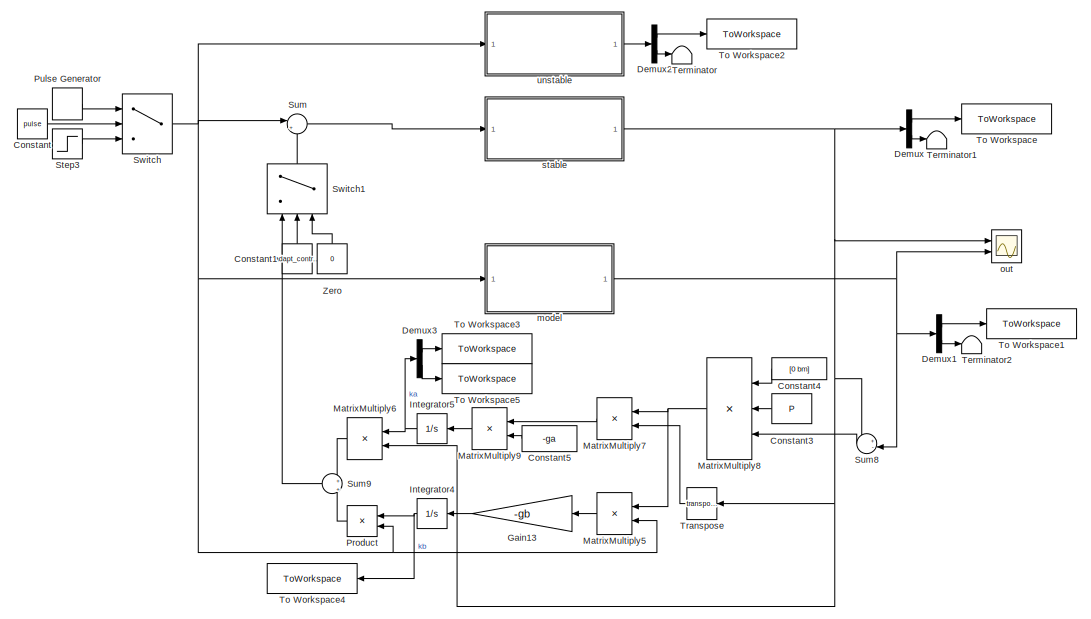
[diagram: root canvas - part 1/2, right side, full height]
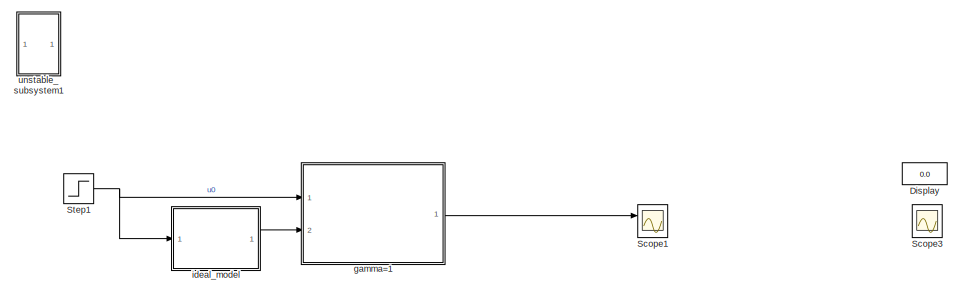
[diagram: root canvas - part 2/2, middle left region]
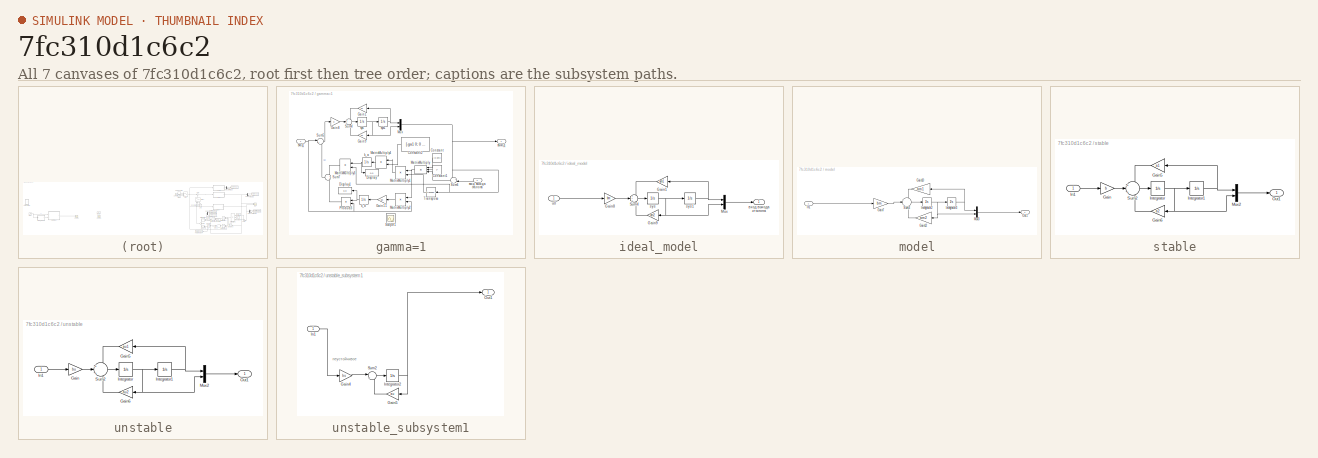
[diagram: thumbnail index - all 7 canvases of the model, root first then tree order]
MODEL slx_7fc310d1c6c2
KIND model
CONFIG AbsTol = auto
CONFIG EnableMultiTasking = off
CONFIG FixedStep = auto
CONFIG MaxStep = 1e-2
CONFIG MinStep = auto
CONFIG RelTol = 1e-3
CONFIG SampleTimeConstraint = Unconstrained
CONFIG SolverName = VariableStepAuto
CONFIG StartTime = 0.0
CONFIG StopTime = t
BLOCK [Constant] Constant
  Value = pulse
BLOCK [Constant] Constant1
  NameLocation = right
  Value = adapt_control
BLOCK [Constant] Constant3
  NameLocation = top
  Value = P
  VectorParams1D = off
BLOCK [Constant] Constant4
  NameLocation = top
  Value = [0 bm]
  VectorParams1D = off
BLOCK [Constant] Constant5
  NameLocation = top
  Value = -ga
  VectorParams1D = off
BLOCK [Demux] Demux
  Outputs = 2
  Ports = [1, 2]
BLOCK [Demux] Demux1
  Outputs = 2
  Ports = [1, 2]
BLOCK [Demux] Demux2
  Outputs = 2
  Ports = [1, 2]
BLOCK [Demux] Demux3
  Outputs = 2
  Ports = [1, 2]
BLOCK [Display] Display
  Commented = on
  Decimation = 2
  Ports = [1]
BLOCK [Gain] Gain13
  Gain = -gb
  NameLocation = top
BLOCK [Integrator] Integrator4
  NameLocation = top
  Ports = [1, 1]
BLOCK [Integrator] Integrator5
  NameLocation = top
  Ports = [1, 1]
BLOCK [Product] MatrixMultiply5
  Multiplication = Matrix(*)
  NameLocation = top
  Ports = [2, 1]
BLOCK [Product] MatrixMultiply6
  Multiplication = Matrix(*)
  NameLocation = top
  Ports = [2, 1]
BLOCK [Product] MatrixMultiply7
  Multiplication = Matrix(*)
  NameLocation = top
  Ports = [2, 1]
BLOCK [Product] MatrixMultiply8
  Inputs = 3
  Multiplication = Matrix(*)
  NameLocation = top
  Ports = [3, 1]
BLOCK [Product] MatrixMultiply9
  Multiplication = Matrix(*)
  NameLocation = top
  Ports = [2, 1]
BLOCK [Product] Product
  NameLocation = top
  Ports = [2, 1]
BLOCK [DiscretePulseGenerator] Pulse Generator
  Period = 20
  Ports = [0, 1]
  PulseType = Time based
  PulseWidth = 50
BLOCK [Scope] Scope1
  Commented = on
  Floating = off
  NumInputPorts = 2
  Ports = [2]
  ScopeSpecificationString = Simulink.scopes.TimeScopeBlockCfg('CurrentConfiguration', extmgr.ConfigurationSet(extmgr.Configuration('Core','General UI',true,'FigureColor',[1 1 1]),extmgr.Configuration('Core','Source UI',true),extmgr.Configuration('Sources','WiredSimulink',true,'DataLoggingVariableName','ScopeData1'),extmgr.Configuration('Visuals','Time Domain',true,'SerializedDisplays',{struct('MinYLimReal','-0.24245','MaxYLi...<+1633ch>
BLOCK [Scope] Scope3
  Commented = on
  Floating = off
  NumInputPorts = 2
  Ports = [2]
  ScopeSpecificationString = Simulink.scopes.TimeScopeBlockCfg('CurrentConfiguration', extmgr.ConfigurationSet(extmgr.Configuration('Core','General UI',true,'FigureColor',[1 1 1]),extmgr.Configuration('Core','Source UI',true),extmgr.Configuration('Sources','WiredSimulink',true,'DataLoggingVariableName','ScopeData1'),extmgr.Configuration('Visuals','Time Domain',true,'SerializedDisplays',{struct('MinYLimReal','-2.42455','MaxYLi...<+1621ch>
BLOCK [Step] Step1
  Commented = on
  SampleTime = 0
  Time = 0
BLOCK [Step] Step3
  SampleTime = 0
  Time = 0
BLOCK [Sum] Sum
  Inputs = |++
  Ports = [2, 1]
BLOCK [Sum] Sum8
  Inputs = +-|
  NameLocation = top
  Ports = [2, 1]
BLOCK [Sum] Sum9
  Inputs = +|+
  NameLocation = top
  Ports = [2, 1]
BLOCK [Switch] Switch
  Criteria = u2 > Threshold
  InputSameDT = off
  SaturateOnIntegerOverflow = off
BLOCK [Switch] Switch1
  Criteria = u2 > Threshold
  InputSameDT = off
  NameLocation = right
  SaturateOnIntegerOverflow = off
BLOCK [Terminator] Terminator
BLOCK [Terminator] Terminator1
BLOCK [Terminator] Terminator2
BLOCK [ToWorkspace] To Workspace
  FixptAsFi = on
  MaxDataPoints = inf
  Ports = [1]
  SampleTime = -1
  SaveFormat = Timeseries
  VariableName = stable
BLOCK [ToWorkspace] To Workspace1
  FixptAsFi = on
  MaxDataPoints = inf
  Ports = [1]
  SampleTime = -1
  SaveFormat = Timeseries
  VariableName = model
BLOCK [ToWorkspace] To Workspace2
  FixptAsFi = on
  MaxDataPoints = inf
  Ports = [1]
  SampleTime = -1
  SaveFormat = Timeseries
  VariableName = unstable
BLOCK [ToWorkspace] To Workspace3
  FixptAsFi = on
  MaxDataPoints = inf
  Ports = [1]
  SampleTime = -1
  SaveFormat = Timeseries
  VariableName = ka1
BLOCK [ToWorkspace] To Workspace4
  FixptAsFi = on
  MaxDataPoints = inf
  NameLocation = top
  Ports = [1]
  SampleTime = -1
  SaveFormat = Timeseries
  VariableName = kb
BLOCK [ToWorkspace] To Workspace5
  FixptAsFi = on
  MaxDataPoints = inf
  Ports = [1]
  SampleTime = -1
  SaveFormat = Timeseries
  VariableName = ka2
BLOCK [Math] Transpose
  NameLocation = top
  Operator = transpose
  Ports = [1, 1]
BLOCK [Constant] Zero
  NameLocation = right
  OutDataTypeStr = Inherit: Inherit via back propagation
  Value = 0
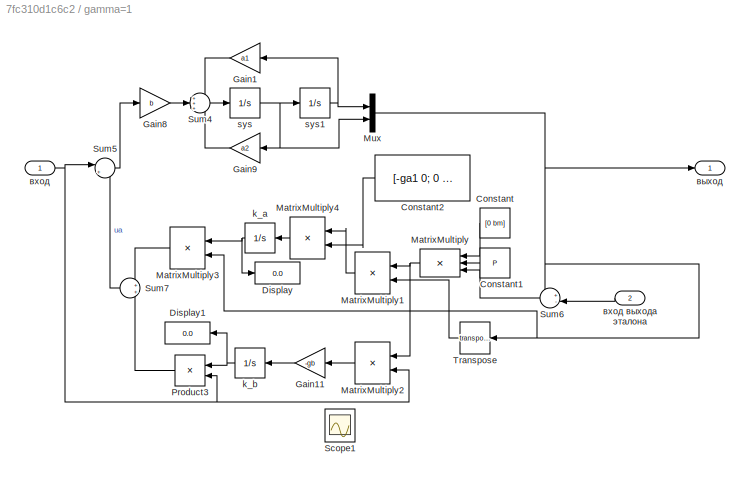
BLOCK [SubSystem] gamma=1
  Commented = on
  Ports = [2, 1]
  RequestExecContextInheritance = off
BLOCK [Constant] gamma=1/Constant
  NameLocation = top
  Value = [0 bm]
BLOCK [Constant] gamma=1/Constant1
  NameLocation = top
  Value = P
BLOCK [Constant] gamma=1/Constant2
  NameLocation = top
  Value = [-ga1 0; 0 -ga2]
BLOCK [Display] gamma=1/Display
  Decimation = 2
  Ports = [1]
BLOCK [Display] gamma=1/Display1
  Decimation = 2
  NameLocation = top
  Ports = [1]
BLOCK [Gain] gamma=1/Gain1
  Gain = a1
  NameLocation = top
BLOCK [Gain] gamma=1/Gain11
  Gain = -gb
  NameLocation = top
BLOCK [Gain] gamma=1/Gain8
  Gain = b
BLOCK [Gain] gamma=1/Gain9
  Gain = a2
  NameLocation = top
BLOCK [Product] gamma=1/MatrixMultiply
  Inputs = 3
  Multiplication = Matrix(*)
  NameLocation = top
  Ports = [3, 1]
BLOCK [Product] gamma=1/MatrixMultiply1
  Multiplication = Matrix(*)
  NameLocation = top
  Ports = [2, 1]
BLOCK [Product] gamma=1/MatrixMultiply2
  Multiplication = Matrix(*)
  NameLocation = top
  Ports = [2, 1]
BLOCK [Product] gamma=1/MatrixMultiply3
  Multiplication = Matrix(*)
  NameLocation = top
  Ports = [2, 1]
BLOCK [Product] gamma=1/MatrixMultiply4
  Multiplication = Matrix(*)
  NameLocation = top
  Ports = [2, 1]
BLOCK [Mux] gamma=1/Mux
  DisplayOption = bar
  Inputs = 2
  Ports = [2, 1]
BLOCK [Product] gamma=1/Product3
  NameLocation = top
  Ports = [2, 1]
BLOCK [Scope] gamma=1/Scope1
  Floating = off
  NumInputPorts = 2
  Ports = [2]
  ScopeSpecificationString = Simulink.scopes.TimeScopeBlockCfg('CurrentConfiguration', extmgr.ConfigurationSet(extmgr.Configuration('Core','General UI',true,'FigureColor',[1 1 1]),extmgr.Configuration('Core','Source UI',true),extmgr.Configuration('Sources','WiredSimulink',true,'DataLoggingVariableName','ScopeData1'),extmgr.Configuration('Visuals','Time Domain',true,'SerializedDisplays',{struct('MinYLimReal','-2.42455','MaxYLi...<+1621ch>
BLOCK [Sum] gamma=1/Sum4
  Inputs = +++
  Ports = [3, 1]
BLOCK [Sum] gamma=1/Sum5
  Inputs = |++
  Ports = [2, 1]
BLOCK [Sum] gamma=1/Sum6
  Inputs = +-|
  NameLocation = top
  Ports = [2, 1]
BLOCK [Sum] gamma=1/Sum7
  NameLocation = top
  Ports = [2, 1]
BLOCK [Math] gamma=1/Transpose
  NameLocation = top
  Operator = transpose
  Ports = [1, 1]
BLOCK [Integrator] gamma=1/k_a
  NameLocation = top
  Ports = [1, 1]
BLOCK [Integrator] gamma=1/k_b
  NameLocation = top
  Ports = [1, 1]
BLOCK [Integrator] gamma=1/sys
  Ports = [1, 1]
BLOCK [Integrator] gamma=1/sys1
  Ports = [1, 1]
BLOCK [Inport] gamma=1/вход
BLOCK [Inport] gamma=1/вход выхода эталона
  Port = 2
BLOCK [Outport] gamma=1/выход
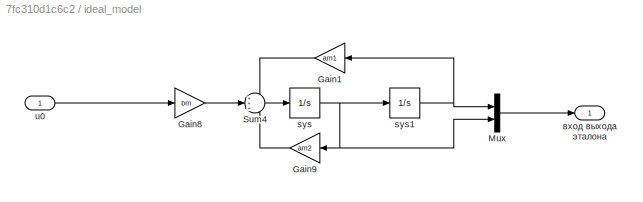
BLOCK [SubSystem] ideal_model
  Commented = on
  Ports = [1, 1]
  RequestExecContextInheritance = off
BLOCK [Gain] ideal_model/Gain1
  Gain = am1
  NameLocation = top
BLOCK [Gain] ideal_model/Gain8
  Gain = bm
BLOCK [Gain] ideal_model/Gain9
  Gain = am2
  NameLocation = top
BLOCK [Mux] ideal_model/Mux
  DisplayOption = bar
  Inputs = 2
  Ports = [2, 1]
BLOCK [Sum] ideal_model/Sum4
  Inputs = +++
  Ports = [3, 1]
BLOCK [Integrator] ideal_model/sys
  Ports = [1, 1]
BLOCK [Integrator] ideal_model/sys1
  Ports = [1, 1]
BLOCK [Inport] ideal_model/u0
BLOCK [Outport] ideal_model/вход выхода эталона
BLOCK [SubSystem] model
  Ports = [1, 1]
  RequestExecContextInheritance = off
BLOCK [Gain] model/Gain10
  Gain = am1
  NameLocation = top
BLOCK [Gain] model/Gain12
  Gain = am2
  NameLocation = top
BLOCK [Gain] model/Gain7
  Gain = bm
BLOCK [Inport] model/In1
BLOCK [Integrator] model/Integrator2
  Ports = [1, 1]
BLOCK [Integrator] model/Integrator3
  Ports = [1, 1]
BLOCK [Mux] model/Mux3
  DisplayOption = bar
  Inputs = 2
  Ports = [2, 1]
BLOCK [Outport] model/Out1
BLOCK [Sum] model/Sum3
  Inputs = +|+|+
  Ports = [3, 1]
BLOCK [Scope] out
  Floating = off
  NumInputPorts = 2
  Ports = [2]
  ScopeSpecificationString = Simulink.scopes.TimeScopeBlockCfg('CurrentConfiguration', extmgr.ConfigurationSet(extmgr.Configuration('Core','General UI',true,'FigureColor',[1 1 1]),extmgr.Configuration('Core','Source UI',true),extmgr.Configuration('Sources','WiredSimulink',true,'DataLoggingVariableName','out','DataLoggingSaveFormat','StructureWithTime'),extmgr.Configuration('Visuals','Time Domain',true,'SerializedDisplays',{st...<+1737ch>
BLOCK [SubSystem] stable
  Ports = [1, 1]
  RequestExecContextInheritance = off
BLOCK [Gain] stable/Gain
  Gain = b
BLOCK [Gain] stable/Gain5
  Gain = a1
  NameLocation = top
BLOCK [Gain] stable/Gain6
  Gain = a2
  NameLocation = top
BLOCK [Inport] stable/In1
BLOCK [Integrator] stable/Integrator
  Ports = [1, 1]
BLOCK [Integrator] stable/Integrator1
  Ports = [1, 1]
BLOCK [Mux] stable/Mux2
  DisplayOption = bar
  Inputs = 2
  Ports = [2, 1]
BLOCK [Outport] stable/Out1
BLOCK [Sum] stable/Sum2
  Inputs = +|+|+
  Ports = [3, 1]
BLOCK [SubSystem] unstable
  Ports = [1, 1]
  RequestExecContextInheritance = off
BLOCK [Gain] unstable/Gain
  Gain = bu
BLOCK [Gain] unstable/Gain5
  Gain = au1
  NameLocation = top
BLOCK [Gain] unstable/Gain6
  Gain = au2
  NameLocation = top
BLOCK [Inport] unstable/In1
BLOCK [Integrator] unstable/Integrator
  Ports = [1, 1]
BLOCK [Integrator] unstable/Integrator1
  Ports = [1, 1]
BLOCK [Mux] unstable/Mux2
  DisplayOption = bar
  Inputs = 2
  Ports = [2, 1]
BLOCK [Outport] unstable/Out1
BLOCK [Sum] unstable/Sum2
  Inputs = +|+|+
  Ports = [3, 1]
BLOCK [SubSystem] unstable_subsystem1
  Commented = on
  Ports = [1, 1]
  RequestExecContextInheritance = off
BLOCK [Gain] unstable_subsystem1/Gain4
  Commented = on
  Gain = bu
BLOCK [Gain] unstable_subsystem1/Gain5
  Commented = on
  Gain = au
  NameLocation = top
BLOCK [Inport] unstable_subsystem1/In1
BLOCK [Integrator] unstable_subsystem1/Integrator2
  Commented = on
  Ports = [1, 1]
BLOCK [Outport] unstable_subsystem1/Out1
BLOCK [Sum] unstable_subsystem1/Sum2
  Commented = on
  Inputs = |++
  Ports = [2, 1]
ANNOTATION unstable_subsystem1: неустойчивое
LINE Constant1:1 -> Switch1:2
LINE Constant3:1 -> MatrixMultiply8:2
LINE Constant4:1 -> MatrixMultiply8:1
LINE Constant5:1 -> MatrixMultiply9:2
LINE Constant:1 -> Switch:2
LINE Demux1:1 -> To Workspace1:1
LINE Demux1:2 -> Terminator2:1
LINE Demux2:1 -> To Workspace2:1
LINE Demux2:2 -> Terminator:1
LINE Demux3:1 -> To Workspace3:1
LINE Demux3:2 -> To Workspace5:1
LINE Demux:1 -> To Workspace:1
LINE Demux:2 -> Terminator1:1
LINE Gain13:1 -> Integrator4:1
NET Integrator4:1 -> Product:1, To Workspace4:1
NET Integrator5:1 -> Demux3:1, MatrixMultiply6:1
LINE MatrixMultiply5:1 -> Gain13:1
LINE MatrixMultiply6:1 -> Sum9:1
LINE MatrixMultiply7:1 -> MatrixMultiply9:1
NET MatrixMultiply8:1 -> MatrixMultiply5:1, MatrixMultiply7:1
LINE MatrixMultiply9:1 -> Integrator5:1
LINE Product:1 -> Sum9:2
LINE Pulse Generator:1 -> Switch:1
NET Step1:1 -> gamma=1:1, ideal_model:1
LINE Step3:1 -> Switch:3
LINE Sum8:1 -> MatrixMultiply8:3
LINE Sum9:1 -> Switch1:1
LINE Sum:1 -> stable:1
LINE Switch1:1 -> Sum:2
NET Switch:1 -> MatrixMultiply5:2, Product:2, Sum:1, model:1, unstable:1
LINE Transpose:1 -> MatrixMultiply7:2
LINE Zero:1 -> Switch1:3
LINE gamma=1/Constant1:1 -> gamma=1/MatrixMultiply:2
LINE gamma=1/Constant2:1 -> gamma=1/MatrixMultiply4:2
LINE gamma=1/Constant:1 -> gamma=1/MatrixMultiply:1
LINE gamma=1/Gain11:1 -> gamma=1/k_b:1
LINE gamma=1/Gain1:1 -> gamma=1/Sum4:1
LINE gamma=1/Gain8:1 -> gamma=1/Sum4:2
LINE gamma=1/Gain9:1 -> gamma=1/Sum4:3
LINE gamma=1/MatrixMultiply1:1 -> gamma=1/MatrixMultiply4:1
LINE gamma=1/MatrixMultiply2:1 -> gamma=1/Gain11:1
LINE gamma=1/MatrixMultiply3:1 -> gamma=1/Sum7:1
LINE gamma=1/MatrixMultiply4:1 -> gamma=1/k_a:1
NET gamma=1/MatrixMultiply:1 -> gamma=1/MatrixMultiply1:1, gamma=1/MatrixMultiply2:1
NET gamma=1/Mux:1 -> gamma=1/MatrixMultiply3:2, gamma=1/Sum6:1, gamma=1/Transpose:1, gamma=1/выход:1
LINE gamma=1/Product3:1 -> gamma=1/Sum7:2
LINE gamma=1/Sum4:1 -> gamma=1/sys:1
LINE gamma=1/Sum5:1 -> gamma=1/Gain8:1
LINE gamma=1/Sum6:1 -> gamma=1/MatrixMultiply:3
LINE gamma=1/Sum7:1 -> gamma=1/Sum5:2
LINE gamma=1/Transpose:1 -> gamma=1/MatrixMultiply1:2
NET gamma=1/k_a:1 -> gamma=1/Display:1, gamma=1/MatrixMultiply3:1
NET gamma=1/k_b:1 -> gamma=1/Display1:1, gamma=1/Product3:1
NET gamma=1/sys1:1 -> gamma=1/Gain1:1, gamma=1/Mux:1
NET gamma=1/sys:1 -> gamma=1/Gain9:1, gamma=1/Mux:2, gamma=1/sys1:1
LINE gamma=1/вход выхода эталона:1 -> gamma=1/Sum6:2
NET gamma=1/вход:1 -> gamma=1/MatrixMultiply2:2, gamma=1/Product3:2, gamma=1/Sum5:1
LINE gamma=1:1 -> Scope1:1
LINE ideal_model/Gain1:1 -> ideal_model/Sum4:1
LINE ideal_model/Gain8:1 -> ideal_model/Sum4:2
LINE ideal_model/Gain9:1 -> ideal_model/Sum4:3
LINE ideal_model/Mux:1 -> ideal_model/вход выхода эталона:1
LINE ideal_model/Sum4:1 -> ideal_model/sys:1
NET ideal_model/sys1:1 -> ideal_model/Gain1:1, ideal_model/Mux:1
NET ideal_model/sys:1 -> ideal_model/Gain9:1, ideal_model/Mux:2, ideal_model/sys1:1
LINE ideal_model/u0:1 -> ideal_model/Gain8:1
LINE ideal_model:1 -> gamma=1:2
LINE model/Gain10:1 -> model/Sum3:1
LINE model/Gain12:1 -> model/Sum3:3
LINE model/Gain7:1 -> model/Sum3:2
LINE model/In1:1 -> model/Gain7:1
NET model/Integrator2:1 -> model/Gain12:1, model/Integrator3:1, model/Mux3:2
NET model/Integrator3:1 -> model/Gain10:1, model/Mux3:1
LINE model/Mux3:1 -> model/Out1:1
LINE model/Sum3:1 -> model/Integrator2:1
NET model:1 -> Demux1:1, Sum8:2, out:2
LINE stable/Gain5:1 -> stable/Sum2:1
LINE stable/Gain6:1 -> stable/Sum2:3
LINE stable/Gain:1 -> stable/Sum2:2
LINE stable/In1:1 -> stable/Gain:1
NET stable/Integrator1:1 -> stable/Gain5:1, stable/Mux2:1
NET stable/Integrator:1 -> stable/Gain6:1, stable/Integrator1:1, stable/Mux2:2
LINE stable/Mux2:1 -> stable/Out1:1
LINE stable/Sum2:1 -> stable/Integrator:1
NET stable:1 -> Demux:1, MatrixMultiply6:2, Sum8:1, Transpose:1, out:1
LINE unstable/Gain5:1 -> unstable/Sum2:1
LINE unstable/Gain6:1 -> unstable/Sum2:3
LINE unstable/Gain:1 -> unstable/Sum2:2
LINE unstable/In1:1 -> unstable/Gain:1
NET unstable/Integrator1:1 -> unstable/Gain5:1, unstable/Mux2:1
NET unstable/Integrator:1 -> unstable/Gain6:1, unstable/Integrator1:1, unstable/Mux2:2
LINE unstable/Mux2:1 -> unstable/Out1:1
LINE unstable/Sum2:1 -> unstable/Integrator:1
LINE unstable:1 -> Demux2:1
LINE unstable_subsystem1/Gain4:1 -> unstable_subsystem1/Sum2:1
LINE unstable_subsystem1/Gain5:1 -> unstable_subsystem1/Sum2:2
LINE unstable_subsystem1/In1:1 -> unstable_subsystem1/Gain4:1
NET unstable_subsystem1/Integrator2:1 -> unstable_subsystem1/Gain5:1, unstable_subsystem1/Out1:1
LINE unstable_subsystem1/Sum2:1 -> unstable_subsystem1/Integrator2:1
note: NET lines group one-source signal fan-out (src -> all destinations, sorted); 1:1 wires keep LINE
